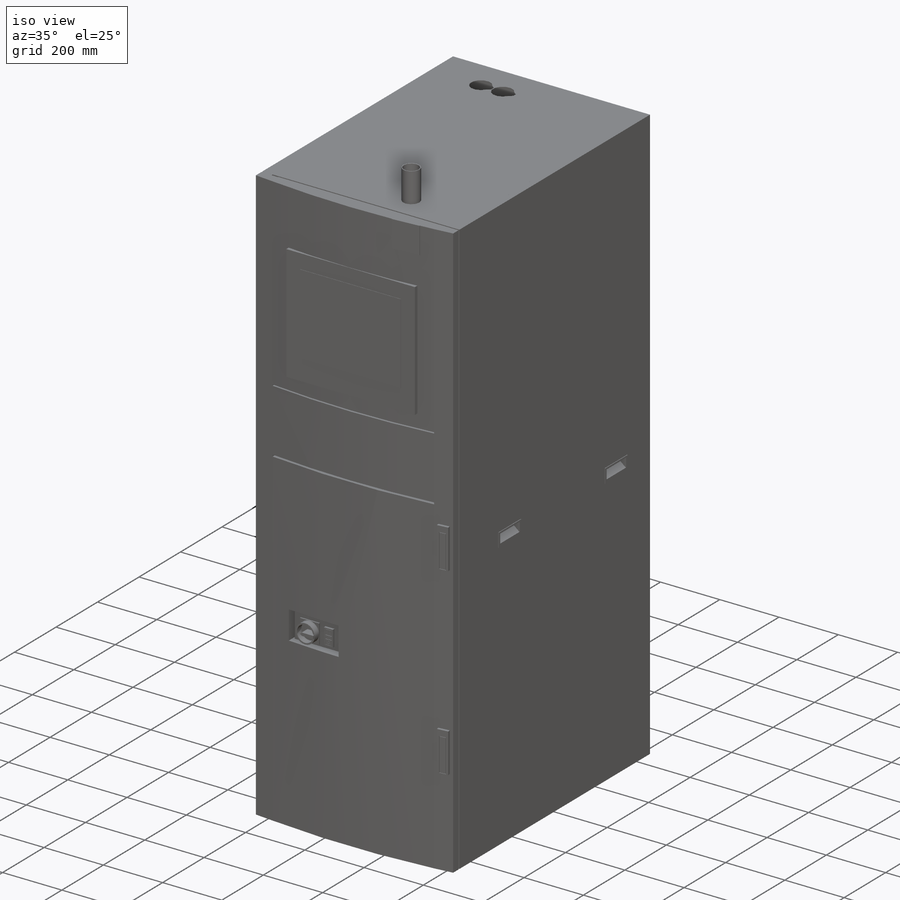
[diagram: iso view]
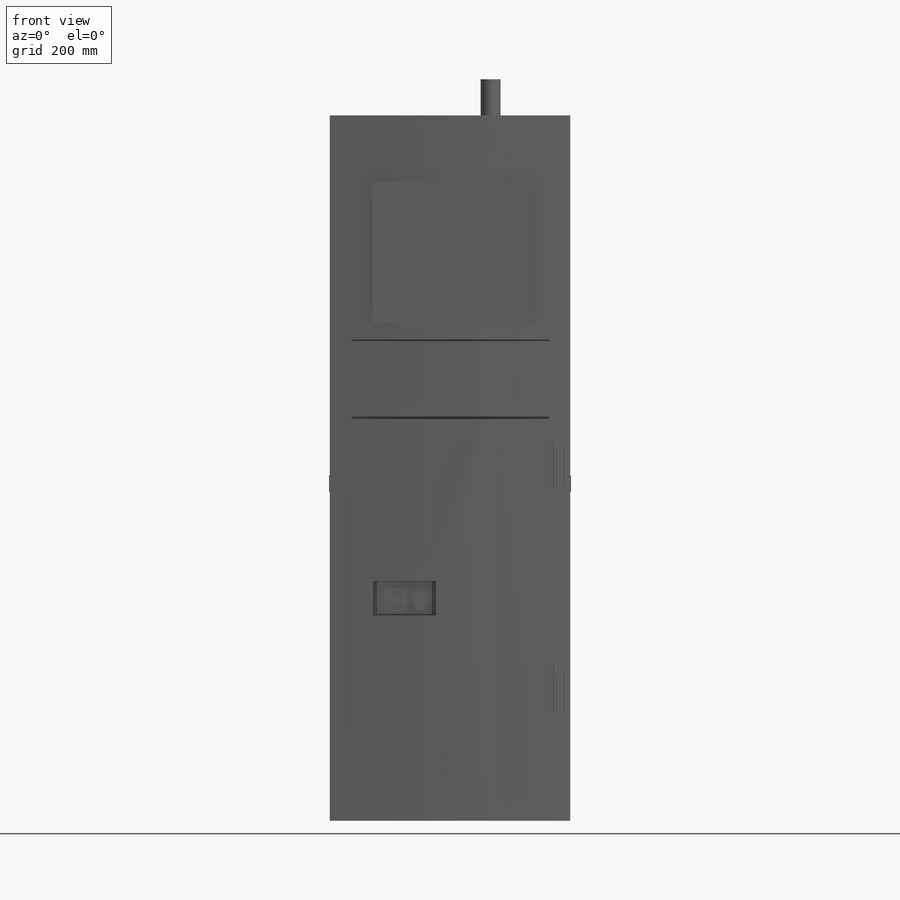
[diagram: front view]
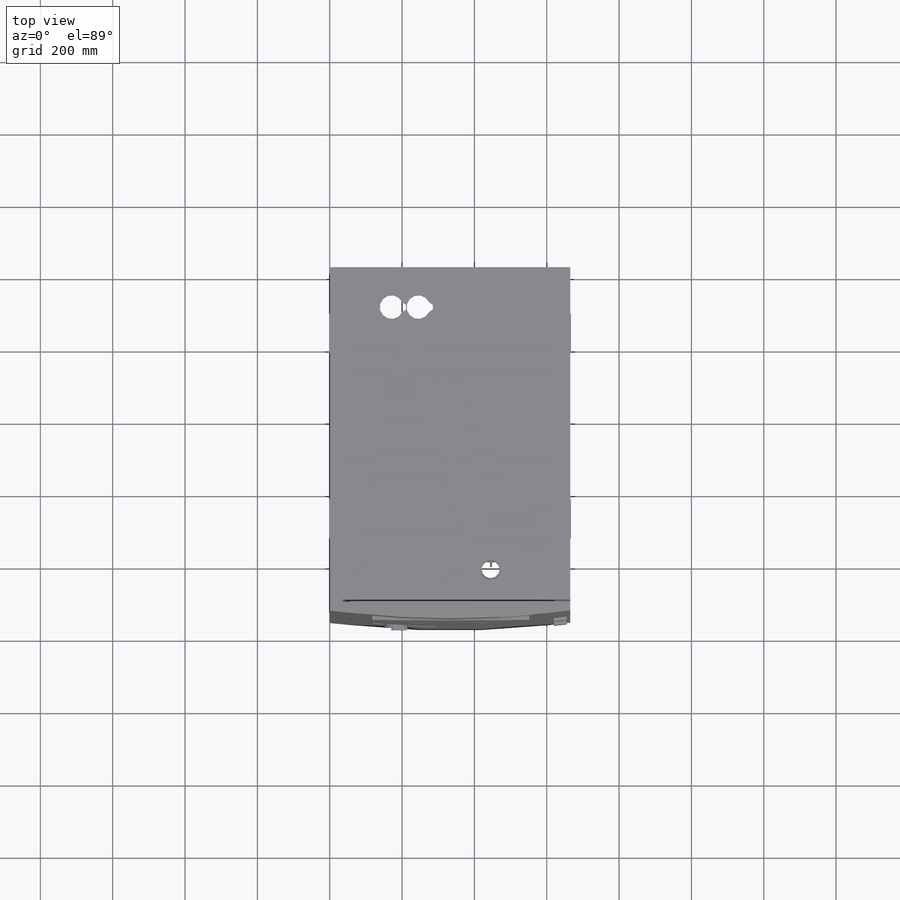
[diagram: top view]
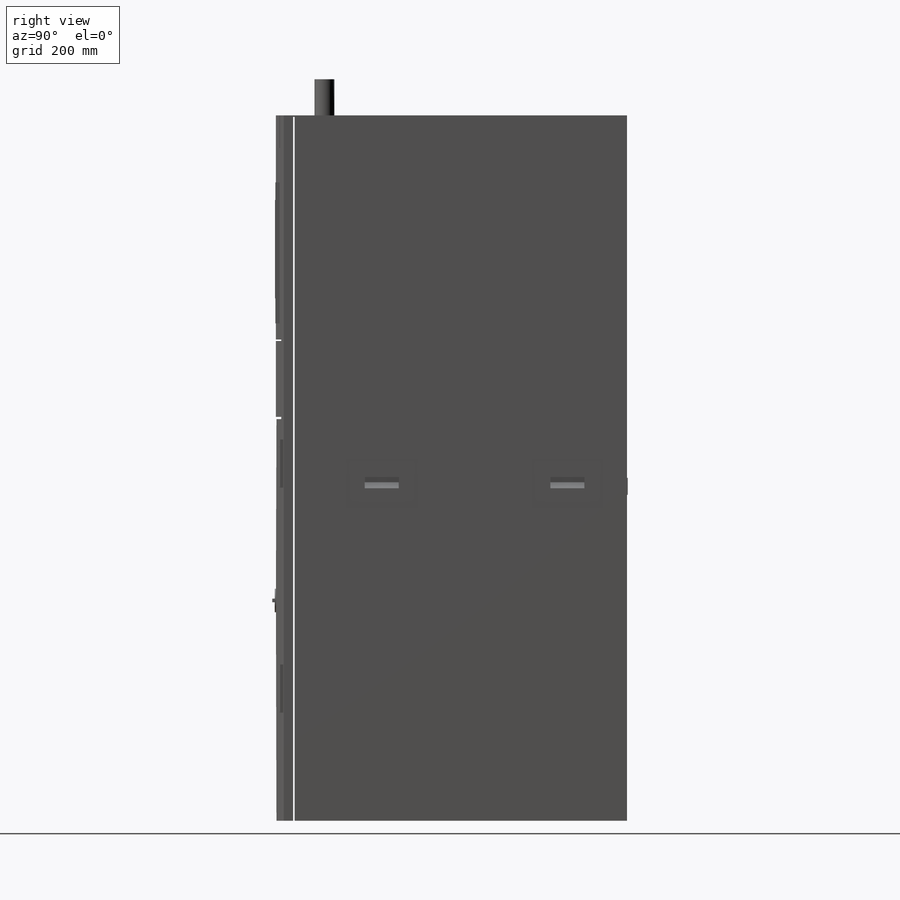
[diagram: right view]
SOLIDWORKS PART (.sldprt)
format: sldprt  version: not decoded by parser v0  size: 4,143,104 bytes
history: native  units: mm
features: sketch x45, extrude x32, cut_extrude x10, plane x6, pattern_linear x4, material x1, mirror x1, shell x1 (+10 scaffold rows collapsed; 1 parser-record rows omitted)
feature tree (111):
  scaffold x10  (default folders/planes/origin — collapsed)
  material  "Material <nicht festgelegt>"
  plane  "Ebene vorne"
  plane  "Ebene oben"
  plane  "Ebene rechts"
  plane  "Boden"  Offset=103mm
  parser-record x1  (decoder bookkeeping rows leaked as tree rows — omitted from the tree; the rows remain in map.json)
  sketch  "Skizze1"  dims[c1.D1=919.0mm c1.D2=665.0mm c1.D3=292.9mm c1.D4=20.0mm c1.D5=21.02mm c1.D6=304.0mm c2.D1=20.0mm c2.D2=20.5mm c2.D3=625.0mm c2.D4=878.5mm c2.D5=898.51mm c2.D6=33.0mm c2.D7=33.0mm c2.D8=304.0mm c2.D9=20.0mm c2.D10=273.0mm]
  extrude  "Grundgerüst"  Depth=1869mm
  sketch  "Skizze2"  dims[c1.D1=20.0mm c1.D2=15.0mm c2.D1=20.0mm c2.D3=11.4mm c2.D4=20.5mm c2.D5=843.0mm]
  extrude  "Seitenteil_links"  Depth=1950mm
  sketch  "3D-Skizze2"  dims[c1.D1=118.02mm c1.D2=~105.691843mm c1.D8=40.3mm c1.D3=~21.463724mm c1.D4=~21.463724mm c2.D3=21.7mm c2.D4=7.35mm c2.D5=~91.24873mm c2.D7=37.34mm c2.D6=2.73mm c3.D5=15.56mm c3.D7=22.0mm c3.D2=1000.7mm]
  cut_extrude  "Griff_links"  Depth=94mm
  sketch  "Skizze3"  dims[D1=5.65mm D2=7.0mm D3=7.0mm D4=11.05mm]
  extrude  "Griffblende_links"  Depth=2mm
  pattern_linear  "Griffmuster_links"  Count1=2 Count2=1 Spacing1=513mm Spacing2=50mm
  plane  "Ebene  für Rotation der Schrauben"  Offset=68mm
  sketch  "Skizze16"  dims[c1.D1=20.0mm c2.D1=~0.068378deg c3.D1=20.0mm c4.D1=~0.068378deg c5.D1=20.0mm c6.D1=~179.931622deg c7.D1=25.0mm c7.D2=24.0mm c7.D3=1.5mm c7.D4=1.5mm c7.D5=1.5mm c7.D6=1.5mm c7.D7=1.5mm c7.D8=1.5mm]
  extrude  "Säule_Seitenteil_links"  [1 undecoded]
  sketch  "Skizze5"  dims[c1.D1=635.0mm c1.D2=5.5mm c1.D3=4.5mm c2.D2=5.5mm c3.D2=~179.173108deg]
  extrude  "Rückblende"  Depth=1888mm
  sketch  "3D-Skizze3"  dims[c1.D1=109.51mm c1.D2=21.7mm c1.D3=7.35mm c1.D4=~44.757478mm c1.D5=~44.757478mm c2.D4=2.73mm c2.D5=22.0mm c2.D6=15.56mm c2.D7=1007.7mm]
  cut_extrude  "Griff_Rückseite"  Depth=94mm
  sketch  "Skizze7"  dims[D1=7.0mm D2=7.0mm D3=11.05mm D4=5.65mm]
  extrude  "Griffblende_Rückseite"  Depth=2mm
  pattern_linear  "Griffmuster_Rückseite"  Count1=2 Count2=1 Spacing1=350mm Spacing2=10mm
  plane  "Spiegelfläche"  Offset=312.5mm
  mirror  "Seitenteil_rechts_komplett"
  shell  "Wandung"  Thickness=1mm
  sketch  "Skizze18"  dims[D1=32.5mm D2=151.0mm D3=90.0mm D4=12.0mm D5=28.0mm D6=10.67mm]
  cut_extrude  "Rohreanschluss_oben"  Depth=400mm
  pattern_linear  "Rohranschluss_oben_Muster"  Count1=2 Count2=1 Spacing1=74mm Spacing2=10mm
  sketch  "Skizze63"  dims[c1.D1=~207.334039mm c1.D2=50.0mm c2.D1=200.25mm c2.D3=816.0mm c3.D1=200.25mm]
  cut_extrude  "Rohranschluss_ParticleCounter"  [1 undecoded]
  sketch  "Skizze64"  dims[D1=2.5mm]
  extrude  "Rohr_ ParticleCounter"  Depth=100mm
  sketch  "Lüfterskizze"  dims[D1=175.0mm D2=175.0mm D3=780.0mm D4=34.0mm D5=2.0 D6=2.0]
  sketch  "Skizze27"  dims[c1.D1=1.5mm c1.D2=1.5mm c1.D3=1.5mm c1.D4=~44.092607mm c2.D4=2.0deg c3.D4=1.5mm c3.D5=60.5mm c3.D6=32.68mm c3.D7=31.13mm c3.D8=26.87mm c3.D9=2.5mm c3.D1=1.5mm c3.D10=21.0mm c3.D11=2.0mm]
  extrude  "Türstrebe_links1"  [1 undecoded]
  sketch  "Skizze32"  dims[D1=0.0mm]
  extrude  "Türstrebe_links1_Füllung"  Depth=0.01mm
  sketch  "Skizze28"  dims[D1=1.5mm D2=3.5mm D3=30.2mm D4=0.5mm D5=1.5mm]
  extrude  "Türscharnier1"  Depth=4mm
  sketch  "Hilfsskizze Scharnierachse"  dims[c1.D1=9.0mm c1.D2=12.5mm c1.D3=39.5mm c2.D1=12.5mm c2.D2=39.5mm]
  sketch  "Skizze66"  dims[D2=2500.0mm D1=545.0mm]
  extrude  "Türteil_oben"  Depth=619.5mm
  sketch  "Skizze61"  dims[c1.D6=2500.0mm c1.D1=50.0mm c1.D2=90.0mm c1.D3=90.0mm c1.D4=20.0mm c1.D5=90.0deg c2.D5=~2502.424374mm c2.D1=90.0deg c3.D1=90.0mm c3.D2=3.0mm c3.D3=45.5mm c3.D4=90.0mm c3.D5=35.0mm c4.D4=90.0mm c4.D6=35.0mm c4.D3=45.5mm c4.D5=90.0mm c5.D4=35.0mm c5.D6=~48.668143mm c5.D7=41.24mm c5.D3=45.5mm c6.D4=35.0mm]
  extrude  "AVL_Logo_Platte"  Depth=90mm
  sketch  "Skizze37"  dims[D1=1.5mm D2=1.5mm D3=1.5mm D4=1.5mm D5=1.5mm D6=58.92mm D7=25.79mm D8=21.0mm D9=5.0mm]
  extrude  "Türstrebe_rechts1"  [1 undecoded]
  sketch  "Skizze39"  dims[c1.D1=185.0mm c1.D2=57.5mm c1.D3=434.0mm c1.D4=390.0mm c2.D2=57.5mm c2.D1=185.0mm]
  extrude  "Monitor"  Depth=48.86mm
  sketch  "Skizze62"  dims[D1=47.0mm D2=69.05mm D3=340.0mm D4=272.0mm]
  extrude  "Monitor_Bildschirm"  Depth=1mm
  sketch  "3D-Skizze17"  dims[c1.D2=2500.0mm c1.D1=2500.0mm c1.D4=2.5mm c2.D2=4.0mm c2.D1=4.0mm c2.D3=4.0mm]
  extrude  "Tastaturteil_Tür"  Depth=210mm
  sketch  "Skizze35"  dims[D1=0.0mm]
  extrude  "Türteil_unten "  Depth=6mm
  sketch  "Skizze40"  dims[D1=896.0mm D2=36.0mm D3=10.5mm D4=133.0mm]
  extrude  "Türgriff"  Depth=9mm
  sketch  "Skizze41"  dims[D1=22.0mm D2=112.0mm D3=7.0mm D4=20.0mm D5=1.0mm]
  cut_extrude  "Türgriff_Ausschneidung"  Depth=8mm
  pattern_linear  "Türgriffmuster"  Count1=2 Count2=1 Spacing1=622mm Spacing2=10mm
  sketch  "3D-Skizze19"  dims[c1.D7=1.5mm c1.D2=~97.325669mm c1.D6=119.0mm c1.D3=~45.519997mm c2.D6=573.0mm c2.D4=174.5mm c2.D5=95.0mm c2.D2=119.0mm c2.D3=567.0mm c3.D6=1.5mm c3.D1=1.5mm]
  cut_extrude  "Einbuchtung_Tür_unten"  [1 undecoded]
  sketch  "Skizze43"  dims[c1.D1=3.5mm c1.D2=11.0mm c1.D3=3.5mm c1.D4=11.0mm c2.D1=11.0mm c2.D4=1.5mm c2.D5=1.5mm]
  extrude  "Schalterausbuchtung"  Depth=23.5mm
  sketch  "Skizze44"  dims[c1.D1=65.0mm c1.D2=6.0mm c1.D3=20.0mm c1.D4=65.0mm c2.D2=6.0mm]
  extrude  "Schalteraufsatz"  Depth=4.5mm
  sketch  "Skizze45"  dims[D1=5.0mm]
  extrude  "Drehschalter"  Depth=21mm
  sketch  "Skizze48"  dims[D1=10.0mm D2=7.78mm D3=38.0mm D4=32.5mm D5=20.0mm]
  extrude  "Drehschalter_Griff"  Depth=28mm
  sketch  "Skizze50"  dims[D1=6.0mm D2=65.0mm]
  sketch  "Skizze51"  dims[c1.D16=8.0mm c1.D17=~5.376768mm c1.D21=8.0mm c1.D1=30.0mm c1.D2=18.5mm c1.D3=55.0mm c1.D4=24.0mm c1.D5=4.0mm c1.D6=4.0mm c1.D7=22.0mm c1.D8=17.0mm c1.D9=1.0mm c1.D10=1.0mm c1.D11=4.0mm c1.D12=3.5mm c1.D13=3.5mm c1.D14=3.5mm c1.D15=3.5mm c2.D17=0.5mm c2.D18=0.5mm c2.D19=8.0mm c2.D20=8.5mm c2.D21=11.0mm c2.D22=10.75mm c2.D23=4.5mm c2.D4=24.0mm]
  extrude  "Schalter"  Depth=8mm
  sketch  "3D-Skizze20"  dims[c1.D1=121.5mm c1.D2=59.5mm c1.D3=440.0mm c1.D4=100.5mm c1.D5=100.5mm c2.D4=443.5mm c2.D5=440.0mm c2.D6=440.0mm c3.D5=1080.5mm]
  extrude  "ParticleCounter_Basis"  Depth=649mm
  sketch  "Skizze67"  dims[D1=90.0mm D2=90.0mm D3=90.0mm]
  extrude  "ParticleCounter_Platte"  Depth=6mm
  sketch  "Skizze68"  dims[D1=147.5mm D2=2.0mm]
  cut_extrude  "ParticleCounter_Türschnitt"  Depth=6mm
  sketch  "Skizze69"  dims[D1=14.0mm D2=14.0mm D3=215.0mm D4=18.0mm D5=33.0mm]
  extrude  "ParticleCounter_Schrauben "  Depth=7mm
  sketch  "Skizze71"  dims[D1=18.0mm D2=15.0mm D3=~3.365908mm D4=28.5mm D5=119.0mm D6=65.5mm D7=45.25mm D8=75.0mm]
  extrude  "ParticleCounter_Anschlüsse"  Depth=3mm
  sketch  "Skizze72"  dims[D1=42.0mm]
  cut_extrude  "ParticleCounter_Rohrloch"  Depth=250mm
  sketch  "Skizze73"  dims[c1.D3=42.0mm c1.D4=42.0mm c1.D1=50.0mm c1.D2=50.0mm c2.D3=25.0mm c2.D4=25.0mm]
  extrude  "ParticleCounter_RohrAufsatz"  Depth=7mm
  sketch  "Skizze76"  dims[D1=45.0mm]
  extrude  "ParticleCounter_Rohr"  Depth=9mm
  sketch  "Skizze77"  dims[c1.D1=30.0mm c1.D2=30.0mm c1.D3=73.5mm c2.D1=30.0mm c2.D2=30.0mm c2.D4=126.0mm]
  extrude  "ParticleCouner_SchalterAufsatz"  Depth=7.5mm
  sketch  "Skizze78"  dims[c1.D1=15.0mm c1.D2=15.0mm c1.D3=~15.327806mm c2.D3=90.0deg c2.D2=6.0mm c3.D3=20.0mm c3.D4=8.0mm]
  extrude  "ParticleCounter_Schalter"  Depth=5mm
  sketch  "Skizze79"  dims[D1=6.0mm D2=18.0mm D3=5.0mm]
  extrude  "ParticleCounter_SchalterGriff"  Depth=12.5mm
  sketch  "Skizze80"  dims[D1=1.5mm D2=38.0mm D3=1.5mm D4=38.0mm]
  sketch  "Skizze81"
  cut_extrude  "Türöffnung"  Depth=5mm
  cut_extrude  "Türausschnitt"  [1 undecoded]
decode coverage: 85 of 93 modeling features carry decoded parameters
note: ~ marks probable driven/reference dimensions
note: 6 parameter values undecoded
summary: no parameter record found for 6 features
note: suppression state not decoded; provenance and decode notes live in map.json
